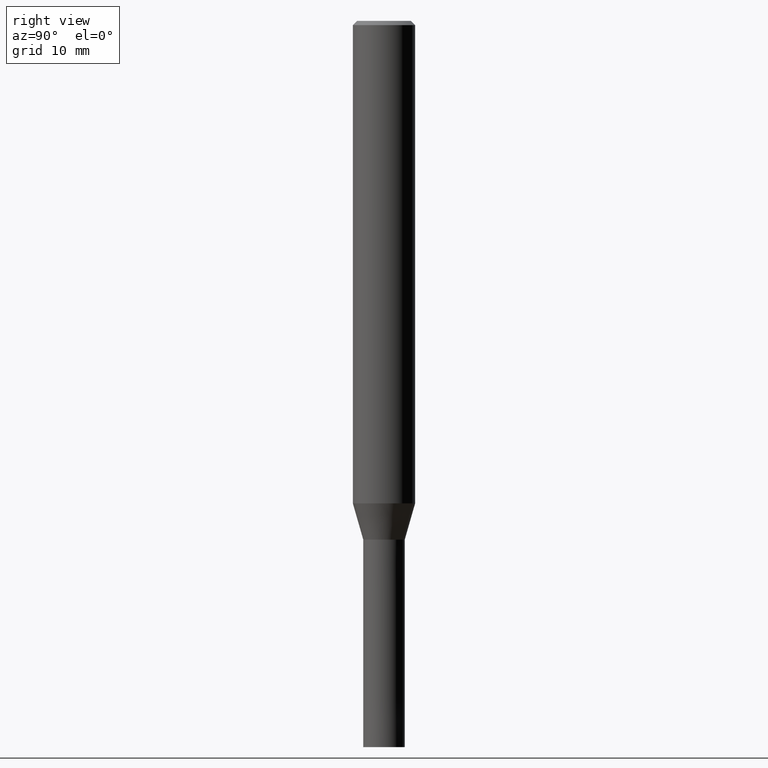
[diagram: clean part render]
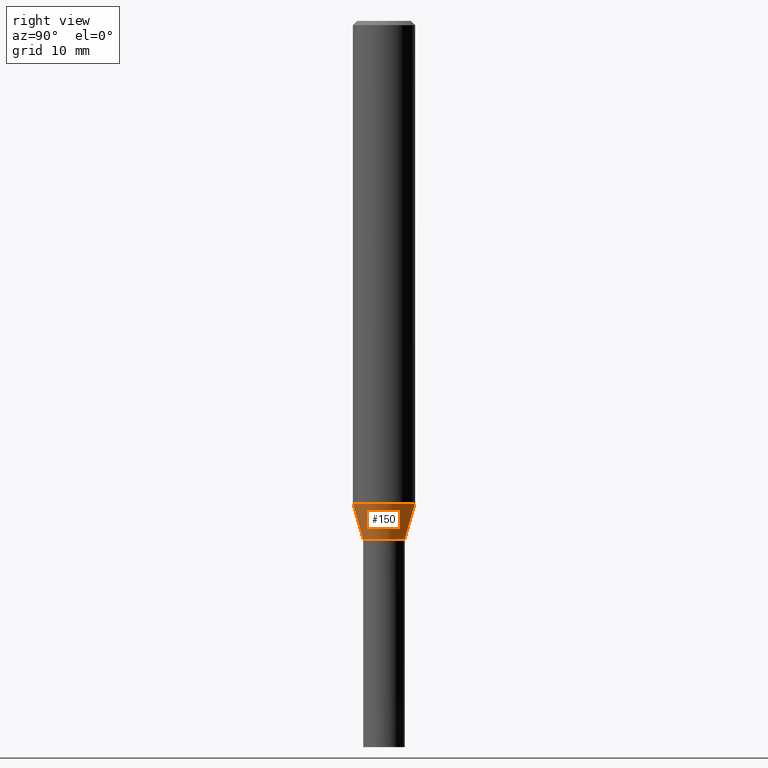
[diagram: same view with one face highlighted and labeled with its STEP entity id]
A machine part, right view. The second image highlights one B-rep face of the part: STEP entity #150.
In plain terms, the highlighted conical surface has half-angle 16.002 deg.
Its self-contained STEP definition (entity closure, byte-faithful):
#104=VERTEX_POINT('',#229);
#108=EDGE_CURVE('',#152,#176,#233,.T.);
#122=EDGE_CURVE('',#128,#152,#249,.T.);
#128=VERTEX_POINT('',#257);
#150=ADVANCED_FACE('',(#282),#283,.T.);
#152=VERTEX_POINT('',#285);
#174=EDGE_CURVE('',#104,#128,#307,.T.);
#176=VERTEX_POINT('',#309);
#178=EDGE_CURVE('',#104,#176,#311,.T.);
#229=CARTESIAN_POINT('',(0.0,2.99995,-46.513));
#233=LINE('',#369,#370);
#249=CIRCLE('',#392,1.99995);
#257=CARTESIAN_POINT('',(0.0,1.99995,-50.0));
#282=FACE_OUTER_BOUND('',#431,.T.);
#283=CONICAL_SURFACE('',#432,2.49995,0.279284171542493);
#285=CARTESIAN_POINT('',(2.44915147732706E-016,-1.99995,-50.0));
#307=LINE('',#458,#459);
#309=CARTESIAN_POINT('',(3.67375783114944E-016,-2.99995,-46.513));
#311=CIRCLE('',#464,2.99995);
#369=CARTESIAN_POINT('',(3.06145465423825E-016,-2.49995,-48.2565));
#370=VECTOR('',#518,1.0);
#392=AXIS2_PLACEMENT_3D('',#543,#544,#545);
#431=EDGE_LOOP('',(#593,#594,#595,#596));
#432=AXIS2_PLACEMENT_3D('',#597,#598,#599);
#458=CARTESIAN_POINT('',(-3.06145465423825E-016,2.49995,-48.2565));
#459=VECTOR('',#611,1.0);
#464=AXIS2_PLACEMENT_3D('',#612,#613,#614);
#518=DIRECTION('',(3.3758432755158E-017,-0.275667626987133,0.961253015304131));
#543=CARTESIAN_POINT('',(0.0,0.0,-50.0));
#544=DIRECTION('',(0.0,0.0,-1.0));
#545=DIRECTION('',(0.0,1.0,0.0));
#593=ORIENTED_EDGE('',*,*,#174,.F.);
#594=ORIENTED_EDGE('',*,*,#178,.T.);
#595=ORIENTED_EDGE('',*,*,#108,.F.);
#596=ORIENTED_EDGE('',*,*,#122,.F.);
#597=CARTESIAN_POINT('',(0.0,0.0,-48.2565));
#598=DIRECTION('',(-0.0,-0.0,1.0));
#599=DIRECTION('',(0.0,1.0,0.0));
#611=DIRECTION('',(3.3758432755158E-017,-0.275667626987133,-0.961253015304131));
#612=CARTESIAN_POINT('',(0.0,0.0,-46.513));
#613=DIRECTION('',(0.0,0.0,-1.0));
#614=DIRECTION('',(0.0,1.0,0.0));